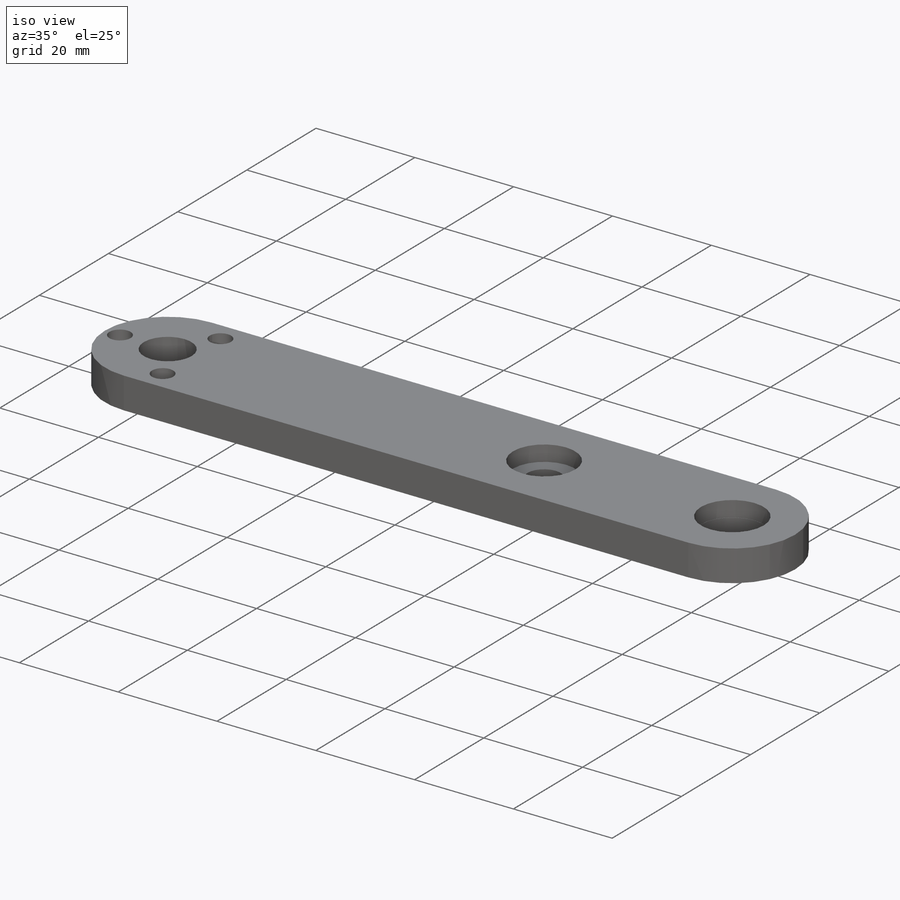
[diagram: iso view]
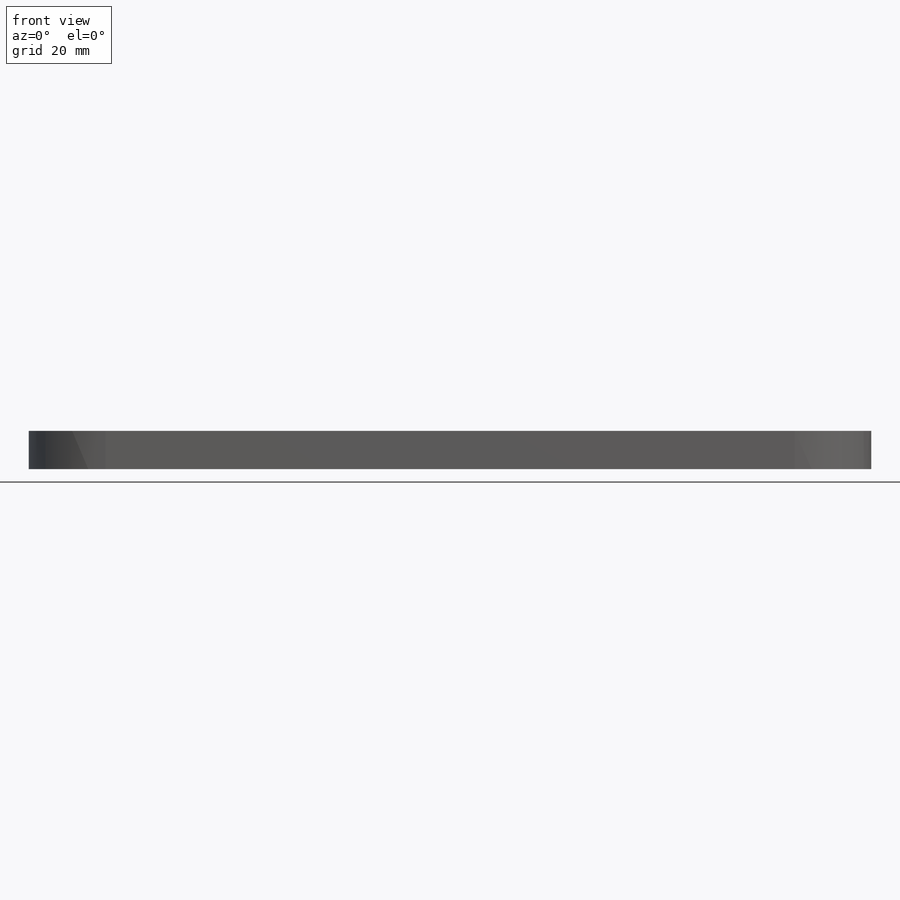
[diagram: front view]
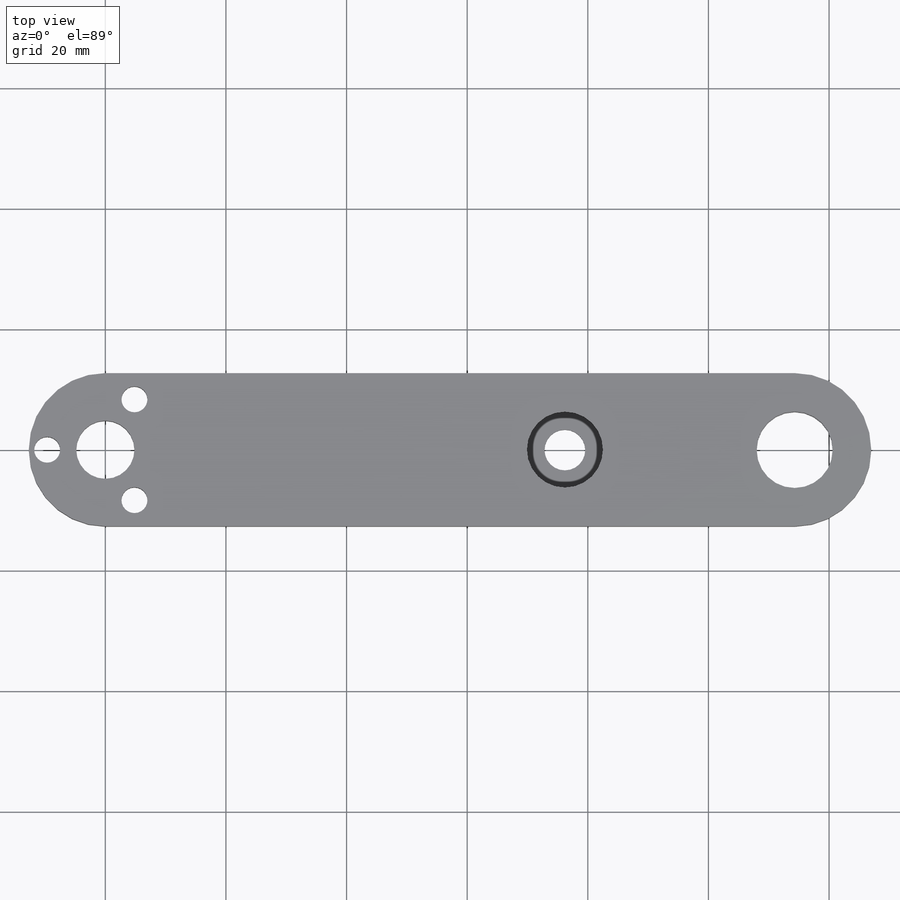
[diagram: top view]
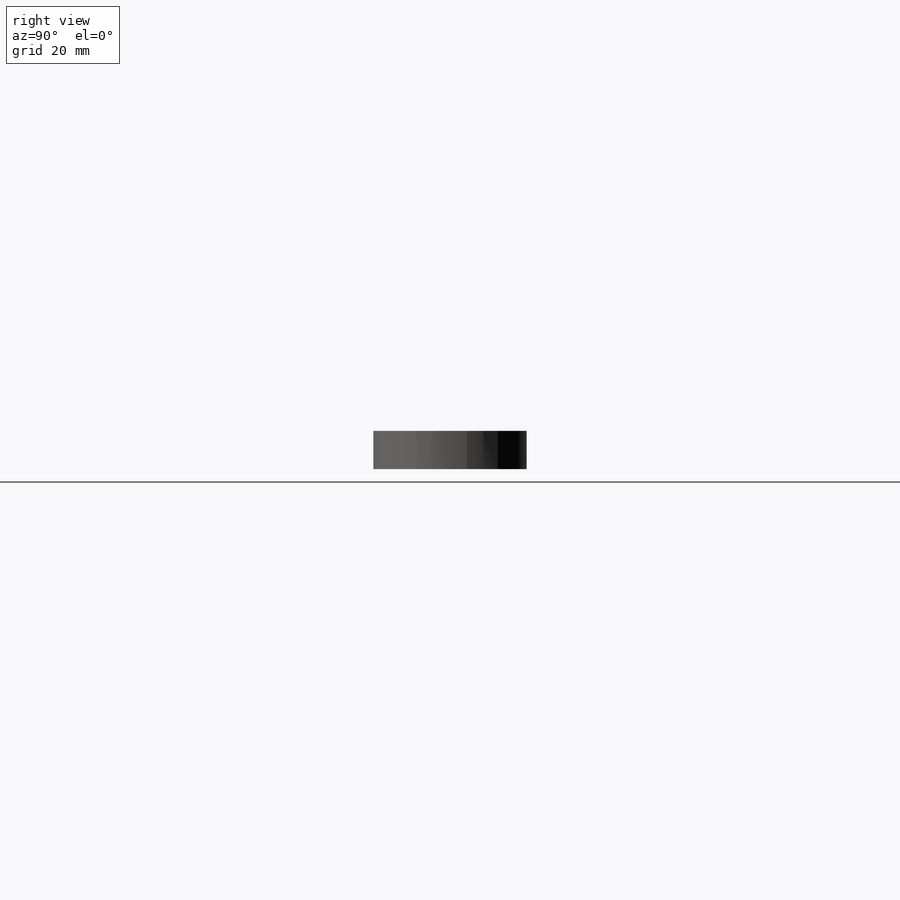
[diagram: right view]
SOLIDWORKS PART (.sldprt)
format: sldprt  version: not decoded by parser v0  size: 299,008 bytes
history: native  units: mm
features: sketch x12, hole x4, cut_extrude x2, material x1, extrude x1 (+11 scaffold rows collapsed)
feature tree (31):
  scaffold x11  (default folders/planes/origin — collapsed)
  material  "Material <not specified>"
  sketch  "Sketch1"  dims[c1.D1=12.7mm c1.D2=76.2mm c1.D3=25.4mm c2.D3=120.0deg c2.D4=25.4mm c3.D4=120.0deg c3.D5=50.8mm c3.D3=114.3mm c3.D2=25.4mm c4.D4=101.6mm c5.D4=90.0deg c6.D4=114.3mm]
  extrude  "Boss-Extrude1"  Depth=6.35mm
  hole  "#18 (0.1695) Diameter Hole1"  Diameter=4.3053mm Depth=25.4mm
  sketch  "Sketch3"  dims[c1.D1=25.4mm c2.D1=120.0deg c2.D2=9.652mm c2.D3=9.652mm]
  sketch  "Sketch2"  dims[hole-wizard template sketch: 47 standard entries collapsed; hole parameters kept: c15.Hole Depth=25.4mm c15.D3=~14.816244mm c15.Drill Angle=118.0deg]
  sketch  "Sketch4"  dims[c1.D2=12.5984mm c1.D3=12.7mm c1.D1=50.8mm c2.D3=12.7mm c2.D1=76.2mm]
  cut_extrude  "Cut-Extrude1"  Depth=3.175mm
  sketch  "Sketch5"  dims[D1=12.5984mm D2=114.3mm]
  cut_extrude  "Cut-Extrude2"  Depth=3.175mm
  hole  "17/64 (0.26563) Diameter Hole1"  Diameter=6.747002mm Depth=6.35mm
  sketch  "Sketch7"  dims[c1.D1=50.8mm c1.D2=88.9mm c2.D1=76.2mm c2.D2=114.3mm]
  sketch  "Sketch8"  dims[hole-wizard template sketch: 59 standard entries collapsed; hole parameters kept: c18.Thru Hole Dia.=~6.747002mm c18.Thru Hole Depth=6.35mm]
  hole  "#47 (0.0785) Diameter Hole1"  Diameter=1.9939mm Depth=3.175mm
  sketch  "Sketch11"  dims[D1=7.4422mm]
  sketch  "Sketch10"  dims[hole-wizard template sketch: 46 standard entries collapsed; hole parameters kept: c15.Hole Dia.=1.9939mm c15.Hole Depth=3.175mm c15.D3=~14.816244mm c15.Drill Angle=118.0deg]
  hole  "#47 (0.0785) Diameter Hole2"  Diameter=1.9939mm Depth=3.175mm
  sketch  "Sketch13"  dims[D1=7.4422mm]
  sketch  "Sketch12"  dims[hole-wizard template sketch: 46 standard entries collapsed; hole parameters kept: c15.Hole Dia.=1.9939mm c15.Hole Depth=3.175mm c15.D3=~14.816244mm c15.Drill Angle=118.0deg]
  sketch  "Sketch14"  dims[D1=~10.779567mm]
decode coverage: 19 of 19 modeling features carry decoded parameters
note: ~ marks probable driven/reference dimensions
summary: Diameter pulled from absorbed wizard sketch
note: suppression state not decoded; provenance and decode notes live in map.json
